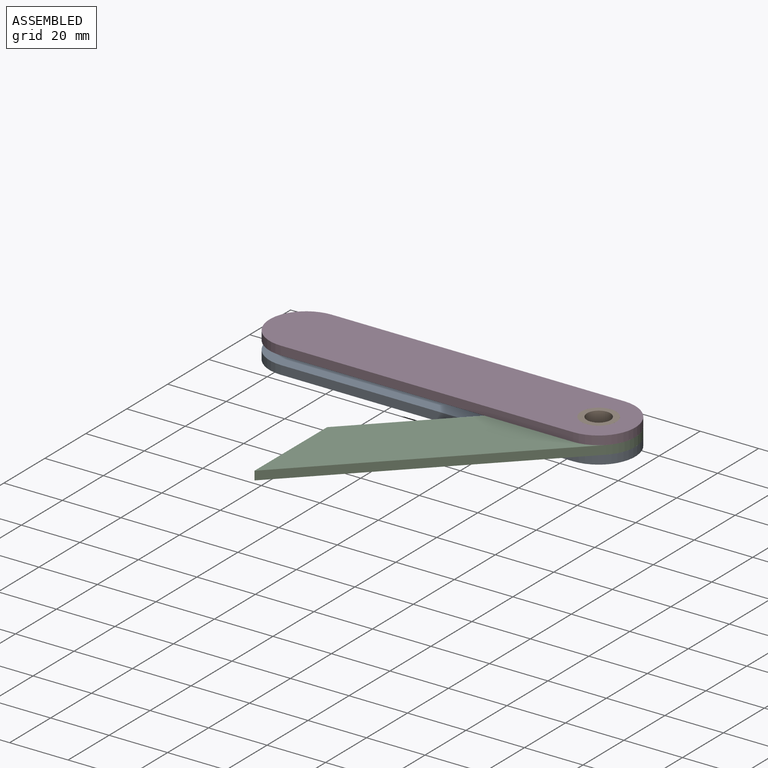
[diagram: assembled view]
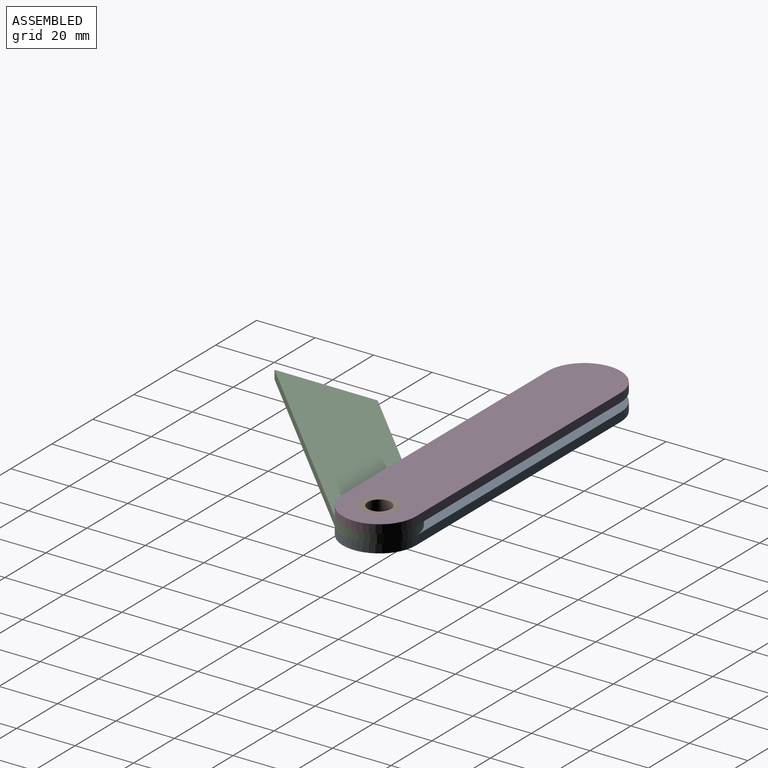
[diagram: assembled view, second angle]
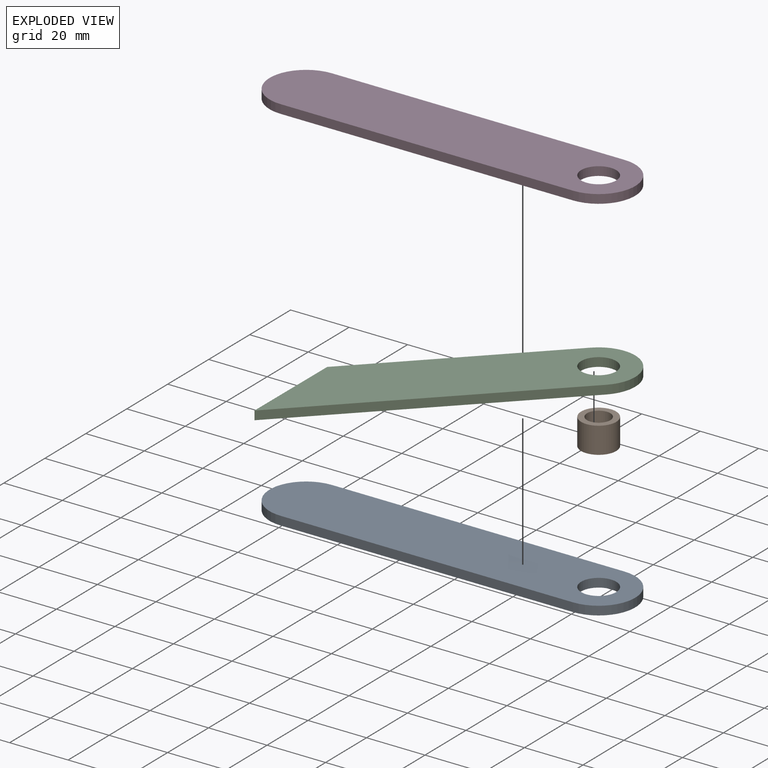
[diagram: exploded view]
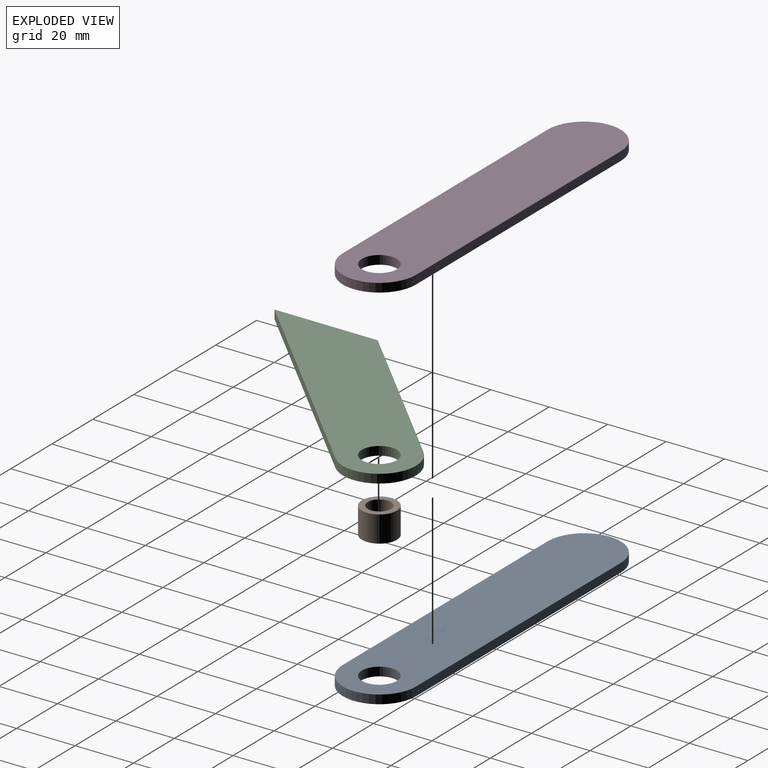
[diagram: exploded view, second angle]
ASSEMBLY  parts=4 mates=3
PART A: 7 faces, bbox 125x25x3 mm
  f0: cylinder r=12.5mm len=25mm, axis (0,0,-1), area 117.8mm2, adj f1,f3,f5,f6
  f1: plane 100x3mm, normal (0,-1,0), area 300mm2, adj f0,f2,f5,f6
  f2: cylinder r=12.5mm len=25mm, axis (0,0,-1), area 117.8mm2, adj f1,f3,f5,f6
  f3: plane 100x3mm, normal (0,1,0), area 300mm2, adj f0,f2,f5,f6
  f4: cylinder r=6mm len=12mm, axis (0,0,-1), area 113.1mm2, adj f5,f6
  f5: plane 125x25mm, normal (0,0,1), area 2877.8mm2, adj f0,f1,f2,f3,f4
  f6: plane 125x25mm, normal (0,0,-1), area 2877.8mm2, adj f0,f1,f2,f3,f4
PART B: 4 faces, bbox 12x12x9 mm
  f0: cylinder r=4mm len=9mm, axis (0,0,-1), area 226.2mm2, adj f2,f3
  f1: cylinder r=6mm len=12mm, axis (0,0,-1), area 339.3mm2, adj f2,f3
  f2: plane 12x12mm, normal (0,0,1), area 62.8mm2, adj f0,f1
  f3: plane 12x12mm, normal (0,0,-1), area 62.8mm2, adj f0,f1
PART C: 7 faces, bbox 112.5x25x3 mm
  f0: plane 100x3mm, normal (0,1,0), area 300mm2, adj f1,f3,f5,f6
  f1: plane 25x25mm, normal (-0.71,-0.71,0), area 106.1mm2, adj f0,f2,f5,f6
  f2: plane 75x3mm, normal (0,-1,0), area 225mm2, adj f1,f3,f5,f6
  f3: cylinder r=12.5mm len=25mm, axis (0,0,-1), area 117.8mm2, adj f0,f2,f5,f6
  f4: cylinder r=6mm len=12mm, axis (0,0,-1), area 113.1mm2, adj f5,f6
  f5: plane 112.5x25mm, normal (0,0,1), area 2319.8mm2, adj f0,f1,f2,f3,f4
  f6: plane 112.5x25mm, normal (0,0,-1), area 2319.8mm2, adj f0,f1,f2,f3,f4
PART D: same geometry as A
PLACE A t=(2.5,-30.21,-4.18)mm fixed
PLACE B rot(axis=(0,0,1),90deg) t=(2.5,-30.21,-7.18)mm
PLACE C rot(axis=(0.92,0.38,0),180deg) t=(2.5,-30.21,3.32)mm
PLACE D t=(2.5,-30.21,1.82)mm
MATE fastened B.f1 <-> D.f4  axis (0,0,1) through (2.5,-30.21,7.82)mm
MATE revolute C.f4 <-> B.f1  axis (0,0,1) through (2.5,-30.21,4.82)mm
MATE fastened B.f1 <-> A.f4  axis (0,0,-1) through (2.5,-30.21,-1.18)mm
